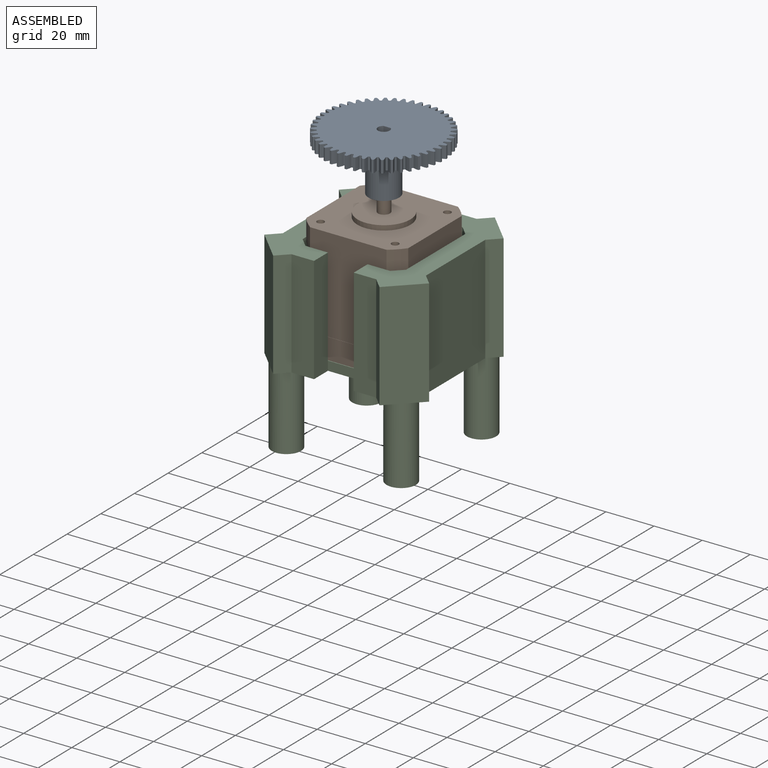
[diagram: assembled view]
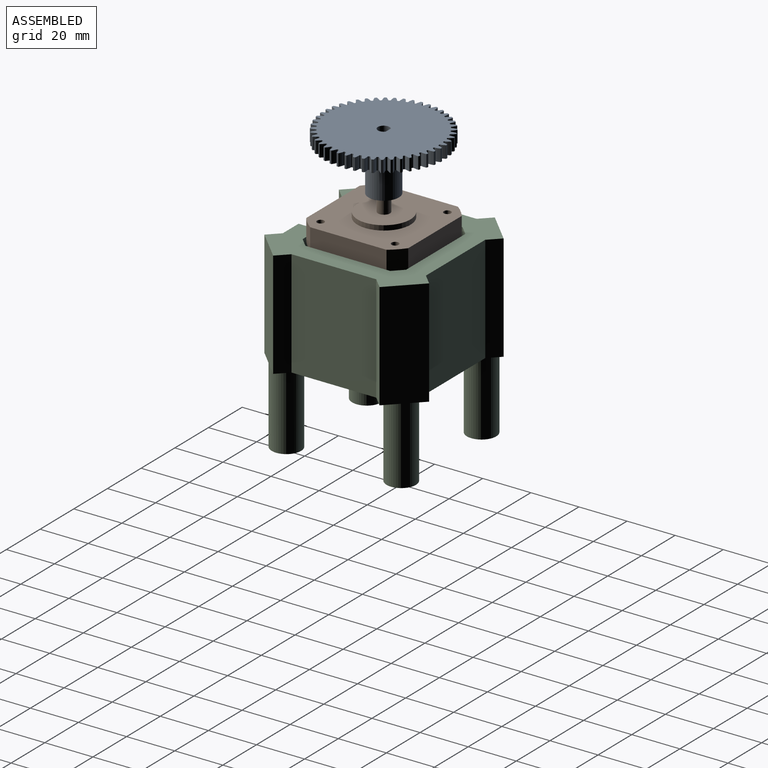
[diagram: assembled view, second angle]
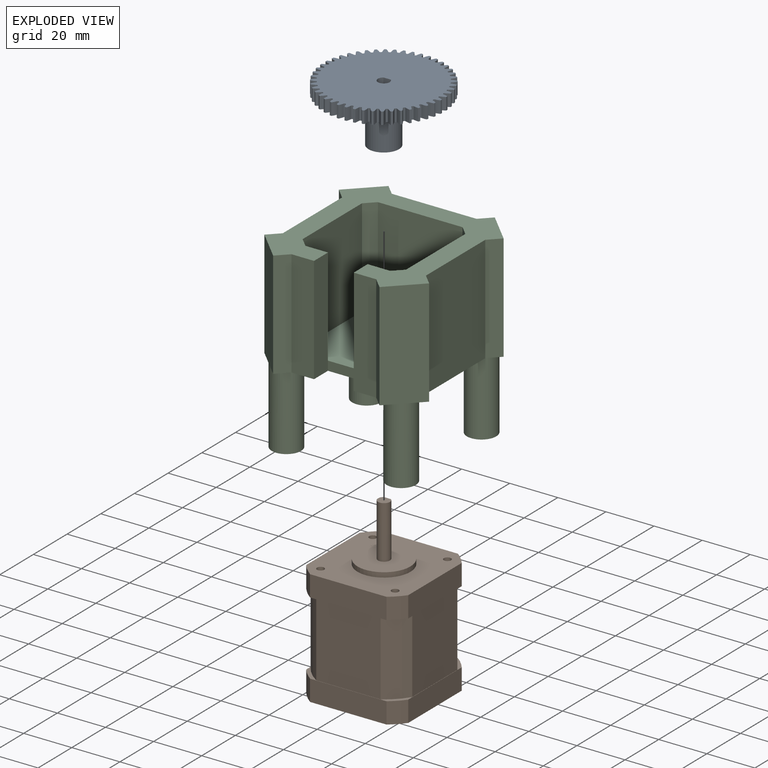
[diagram: exploded view]
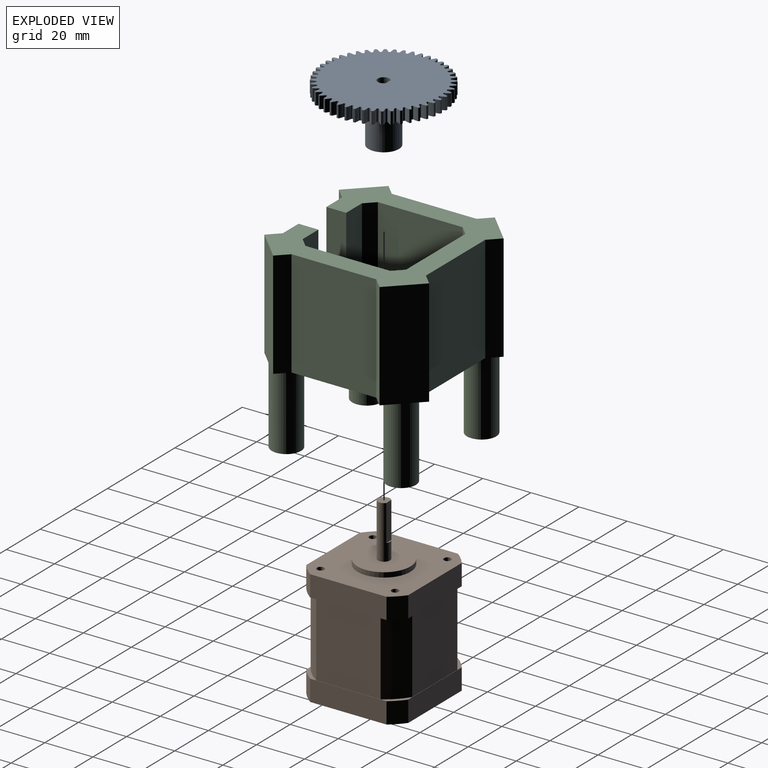
[diagram: exploded view, second angle]
ASSEMBLY  parts=3 mates=2
PART A: 294 faces, bbox 50.2x24.1x50.2 mm
  f0: cylinder r=25.14mm len=5.08mm, axis (0,1,0), area 3.9mm2, adj f47,f49,f280,f287
  f1: cylinder r=25.14mm len=5.08mm, axis (0,1,0), area 3.9mm2, adj f47,f49,f265,f282
  f2: cylinder r=25.14mm len=5.08mm, axis (0,1,0), area 3.9mm2, adj f47,f49,f277,f285
  f3: cylinder r=25.14mm len=5.08mm, axis (0,1,0), area 3.9mm2, adj f47,f49,f272,f275
  f4: cylinder r=25.14mm len=5.08mm, axis (0,1,0), area 3.9mm2, adj f47,f49,f260,f267
  f5: cylinder r=25.14mm len=5.08mm, axis (0,1,0), area 3.9mm2, adj f47,f49,f255,f262
  f6: cylinder r=25.14mm len=5.08mm, axis (0,1,0), area 3.9mm2, adj f47,f49,f250,f257
  f7: cylinder r=25.14mm len=5.08mm, axis (0,1,0), area 3.9mm2, adj f47,f49,f245,f252
  f8: cylinder r=25.14mm len=5.08mm, axis (0,1,0), area 3.9mm2, adj f47,f49,f240,f247
  f9: cylinder r=25.14mm len=5.08mm, axis (0,1,0), area 3.9mm2, adj f47,f49,f235,f242
  f10: cylinder r=25.14mm len=5.08mm, axis (0,1,0), area 3.9mm2, adj f47,f49,f230,f237
  f11: cylinder r=25.14mm len=5.08mm, axis (0,1,0), area 3.9mm2, adj f47,f49,f210,f232
  f12: cylinder r=25.14mm len=5.08mm, axis (0,1,0), area 3.9mm2, adj f47,f49,f220,f227
  f13: cylinder r=25.14mm len=5.08mm, axis (0,1,0), area 3.9mm2, adj f47,f49,f205,f222
  f14: cylinder r=25.14mm len=5.08mm, axis (0,1,0), area 3.9mm2, adj f47,f49,f217,f225
  f15: cylinder r=25.14mm len=5.08mm, axis (0,1,0), area 3.9mm2, adj f47,f49,f212,f215
  f16: cylinder r=25.14mm len=5.08mm, axis (0,1,0), area 3.9mm2, adj f47,f49,f200,f207
  f17: cylinder r=25.14mm len=5.08mm, axis (0,1,0), area 3.9mm2, adj f47,f49,f195,f202
  f18: cylinder r=25.14mm len=5.08mm, axis (0,1,0), area 3.9mm2, adj f47,f49,f190,f197
  f19: cylinder r=25.14mm len=5.08mm, axis (0,1,0), area 3.9mm2, adj f47,f49,f185,f192
  f20: cylinder r=25.14mm len=5.08mm, axis (0,1,0), area 3.9mm2, adj f47,f49,f180,f187
  f21: cylinder r=25.14mm len=5.08mm, axis (0,1,0), area 3.9mm2, adj f47,f49,f175,f182
  f22: cylinder r=25.14mm len=5.08mm, axis (0,1,0), area 3.9mm2, adj f47,f49,f170,f177
  f23: cylinder r=25.14mm len=5.08mm, axis (0,1,0), area 3.9mm2, adj f47,f49,f150,f172
  f24: cylinder r=25.14mm len=5.08mm, axis (0,1,0), area 3.9mm2, adj f47,f49,f160,f167
  f25: cylinder r=25.14mm len=5.08mm, axis (0,1,0), area 3.9mm2, adj f47,f49,f145,f162
  f26: cylinder r=25.14mm len=5.08mm, axis (0,1,0), area 3.9mm2, adj f47,f49,f157,f165
  f27: cylinder r=25.14mm len=5.08mm, axis (0,1,0), area 3.9mm2, adj f47,f49,f152,f155
  f28: cylinder r=25.14mm len=5.08mm, axis (0,1,0), area 3.9mm2, adj f47,f49,f140,f147
  f29: cylinder r=25.14mm len=5.08mm, axis (0,1,0), area 3.9mm2, adj f47,f49,f135,f142
  f30: cylinder r=25.14mm len=5.08mm, axis (0,1,0), area 3.9mm2, adj f47,f49,f130,f137
  f31: cylinder r=25.14mm len=5.08mm, axis (0,1,0), area 3.9mm2, adj f47,f49,f50,f132
  f32: cylinder r=25.14mm len=5.08mm, axis (0,1,0), area 3.9mm2, adj f47,f49,f127,f270
  f33: cylinder r=25.14mm len=5.08mm, axis (0,1,0), area 3.9mm2, adj f47,f49,f122,f125
  f34: cylinder r=25.14mm len=5.08mm, axis (0,1,0), area 3.9mm2, adj f47,f49,f117,f120
  f35: cylinder r=25.14mm len=5.08mm, axis (0,1,0), area 3.9mm2, adj f47,f49,f112,f115
  f36: cylinder r=25.14mm len=5.08mm, axis (0,1,0), area 3.9mm2, adj f47,f49,f107,f110
  f37: cylinder r=25.14mm len=5.08mm, axis (0,1,0), area 3.9mm2, adj f47,f49,f102,f105
  f38: cylinder r=25.14mm len=5.08mm, axis (0,1,0), area 3.9mm2, adj f47,f49,f97,f100
  f39: cylinder r=25.14mm len=5.08mm, axis (0,1,0), area 3.9mm2, adj f47,f49,f92,f95
  f40: cylinder r=25.14mm len=5.08mm, axis (0,1,0), area 3.9mm2, adj f47,f49,f80,f87
  f41: cylinder r=25.14mm len=5.08mm, axis (0,1,0), area 3.9mm2, adj f47,f49,f70,f82
  f42: cylinder r=25.14mm len=5.08mm, axis (0,1,0), area 3.9mm2, adj f47,f49,f77,f90
  f43: cylinder r=25.14mm len=5.08mm, axis (0,1,0), area 3.9mm2, adj f47,f49,f72,f75
  f44: cylinder r=25.14mm len=5.08mm, axis (0,1,0), area 3.9mm2, adj f47,f49,f67,f85
  f45: cylinder r=25.14mm len=5.08mm, axis (0,1,0), area 3.9mm2, adj f47,f49,f62,f65
  f46: cylinder r=25.14mm len=5.08mm, axis (0,1,0), area 3.9mm2, adj f47,f49,f57,f60
  f47: plane 50.21x50.21mm, normal (0,-1,0), area 1800.8mm2, adj f0,f1,f2,f3,f4,f5,f6,f7
  f48: cylinder r=25.14mm len=5.08mm, axis (0,1,0), area 3.9mm2, adj f47,f49,f52,f55
  f49: plane 50.21x50.21mm, normal (0,1,0), area 1691.7mm2, adj f0,f1,f2,f3,f4,f5,f6,f7
  f50: extruded ~5.08x1.96mm, area 10.7mm2, adj f31,f47,f49,f53
  f51: cylinder r=22.87mm len=5.08mm, axis (0,1,0), area 1.4mm2, adj f47,f49,f53,f54
  f52: extruded ~5.08x1.96mm, area 10.7mm2, adj f47,f48,f49,f54
  f53: cylinder r=0.35mm len=5.08mm, axis (0,1,0), area 2.4mm2, adj f47,f49,f50,f51
  f54: cylinder r=0.35mm len=5.08mm, axis (0,1,0), area 2.4mm2, adj f47,f49,f51,f52
  f55: extruded ~5.08x2.04mm, area 10.7mm2, adj f47,f48,f49,f58
  f56: cylinder r=22.87mm len=5.08mm, axis (0,1,0), area 1.4mm2, adj f47,f49,f58,f59
  f57: extruded ~5.08x1.84mm, area 10.7mm2, adj f46,f47,f49,f59
  f58: cylinder r=0.35mm len=5.08mm, axis (0,1,0), area 2.4mm2, adj f47,f49,f55,f56
  f59: cylinder r=0.35mm len=5.08mm, axis (0,1,0), area 2.4mm2, adj f47,f49,f56,f57
  f60: extruded ~5.08x2.09mm, area 10.7mm2, adj f46,f47,f49,f63
  f61: cylinder r=22.87mm len=5.08mm, axis (0,1,0), area 1.4mm2, adj f47,f49,f63,f64
  f62: extruded ~5.08x1.69mm, area 10.7mm2, adj f45,f47,f49,f64
  f63: cylinder r=0.35mm len=5.08mm, axis (0,1,0), area 2.4mm2, adj f47,f49,f60,f61
  f64: cylinder r=0.35mm len=5.08mm, axis (0,1,0), area 2.4mm2, adj f47,f49,f61,f62
  f65: extruded ~5.08x2.11mm, area 10.7mm2, adj f45,f47,f49,f68
  f66: cylinder r=22.87mm len=5.08mm, axis (0,1,0), area 1.4mm2, adj f47,f49,f68,f69
  f67: extruded ~5.08x1.51mm, area 10.7mm2, adj f44,f47,f49,f69
  f68: cylinder r=0.35mm len=5.08mm, axis (0,1,0), area 2.4mm2, adj f47,f49,f65,f66
  f69: cylinder r=0.35mm len=5.08mm, axis (0,1,0), area 2.4mm2, adj f47,f49,f66,f67
  f70: extruded ~5.08x1.94mm, area 10.7mm2, adj f41,f47,f49,f73
  f71: cylinder r=22.87mm len=5.08mm, axis (0,1,0), area 1.4mm2, adj f47,f49,f73,f74
  f72: extruded ~5.08x1.94mm, area 10.7mm2, adj f43,f47,f49,f74
  f73: cylinder r=0.35mm len=5.08mm, axis (0,1,0), area 2.4mm2, adj f47,f49,f70,f71
  f74: cylinder r=0.35mm len=5.08mm, axis (0,1,0), area 2.4mm2, adj f47,f49,f71,f72
  f75: extruded ~5.08x1.81mm, area 10.7mm2, adj f43,f47,f49,f78
  f76: cylinder r=22.87mm len=5.08mm, axis (0,1,0), area 1.4mm2, adj f47,f49,f78,f79
  f77: extruded ~5.08x2.03mm, area 10.7mm2, adj f42,f47,f49,f79
  f78: cylinder r=0.35mm len=5.08mm, axis (0,1,0), area 2.4mm2, adj f47,f49,f75,f76
  f79: cylinder r=0.35mm len=5.08mm, axis (0,1,0), area 2.4mm2, adj f47,f49,f76,f77
  f80: extruded ~5.08x2.03mm, area 10.7mm2, adj f40,f47,f49,f83
  f81: cylinder r=22.87mm len=5.08mm, axis (0,1,0), area 1.4mm2, adj f47,f49,f83,f84
  f82: extruded ~5.08x1.81mm, area 10.7mm2, adj f41,f47,f49,f84
  f83: cylinder r=0.35mm len=5.08mm, axis (0,1,0), area 2.4mm2, adj f47,f49,f80,f81
  f84: cylinder r=0.35mm len=5.08mm, axis (0,1,0), area 2.4mm2, adj f47,f49,f81,f82
  f85: extruded ~5.08x2.09mm, area 10.7mm2, adj f44,f47,f49,f88
  f86: cylinder r=22.87mm len=5.08mm, axis (0,1,0), area 1.4mm2, adj f47,f49,f88,f89
  f87: extruded ~5.08x1.65mm, area 10.7mm2, adj f40,f47,f49,f89
  f88: cylinder r=0.35mm len=5.08mm, axis (0,1,0), area 2.4mm2, adj f47,f49,f85,f86
  f89: cylinder r=0.35mm len=5.08mm, axis (0,1,0), area 2.4mm2, adj f47,f49,f86,f87
  f90: extruded ~5.08x1.65mm, area 10.7mm2, adj f42,f47,f49,f93
  f91: cylinder r=22.87mm len=5.08mm, axis (0,1,0), area 1.4mm2, adj f47,f49,f93,f94
  f92: extruded ~5.08x2.09mm, area 10.7mm2, adj f39,f47,f49,f94
  f93: cylinder r=0.35mm len=5.08mm, axis (0,1,0), area 2.4mm2, adj f47,f49,f90,f91
  f94: cylinder r=0.35mm len=5.08mm, axis (0,1,0), area 2.4mm2, adj f47,f49,f91,f92
  f95: extruded ~5.08x1.51mm, area 10.7mm2, adj f39,f47,f49,f98
  f96: cylinder r=22.87mm len=5.08mm, axis (0,1,0), area 1.4mm2, adj f47,f49,f98,f99
  f97: extruded ~5.08x2.11mm, area 10.7mm2, adj f38,f47,f49,f99
  f98: cylinder r=0.35mm len=5.08mm, axis (0,1,0), area 2.4mm2, adj f47,f49,f95,f96
  f99: cylinder r=0.35mm len=5.08mm, axis (0,1,0), area 2.4mm2, adj f47,f49,f96,f97
  f100: extruded ~5.08x1.69mm, area 10.7mm2, adj f38,f47,f49,f103
  f101: cylinder r=22.87mm len=5.08mm, axis (0,1,0), area 1.4mm2, adj f47,f49,f103,f104
  f102: extruded ~5.08x2.09mm, area 10.7mm2, adj f37,f47,f49,f104
  f103: cylinder r=0.35mm len=5.08mm, axis (0,1,0), area 2.4mm2, adj f47,f49,f100,f101
  f104: cylinder r=0.35mm len=5.08mm, axis (0,1,0), area 2.4mm2, adj f47,f49,f101,f102
  f105: extruded ~5.08x1.84mm, area 10.7mm2, adj f37,f47,f49,f108
  f106: cylinder r=22.87mm len=5.08mm, axis (0,1,0), area 1.4mm2, adj f47,f49,f108,f109
  f107: extruded ~5.08x2.04mm, area 10.7mm2, adj f36,f47,f49,f109
  f108: cylinder r=0.35mm len=5.08mm, axis (0,1,0), area 2.4mm2, adj f47,f49,f105,f106
  f109: cylinder r=0.35mm len=5.08mm, axis (0,1,0), area 2.4mm2, adj f47,f49,f106,f107
  f110: extruded ~5.08x1.96mm, area 10.7mm2, adj f36,f47,f49,f113
  f111: cylinder r=22.87mm len=5.08mm, axis (0,1,0), area 1.4mm2, adj f47,f49,f113,f114
  f112: extruded ~5.08x1.96mm, area 10.7mm2, adj f35,f47,f49,f114
  f113: cylinder r=0.35mm len=5.08mm, axis (0,1,0), area 2.4mm2, adj f47,f49,f110,f111
  f114: cylinder r=0.35mm len=5.08mm, axis (0,1,0), area 2.4mm2, adj f47,f49,f111,f112
  f115: extruded ~5.08x2.04mm, area 10.7mm2, adj f35,f47,f49,f118
  f116: cylinder r=22.87mm len=5.08mm, axis (0,1,0), area 1.4mm2, adj f47,f49,f118,f119
  f117: extruded ~5.08x1.84mm, area 10.7mm2, adj f34,f47,f49,f119
  f118: cylinder r=0.35mm len=5.08mm, axis (0,1,0), area 2.4mm2, adj f47,f49,f115,f116
  f119: cylinder r=0.35mm len=5.08mm, axis (0,1,0), area 2.4mm2, adj f47,f49,f116,f117
  f120: extruded ~5.08x2.09mm, area 10.7mm2, adj f34,f47,f49,f123
  f121: cylinder r=22.87mm len=5.08mm, axis (0,1,0), area 1.4mm2, adj f47,f49,f123,f124
  f122: extruded ~5.08x1.69mm, area 10.7mm2, adj f33,f47,f49,f124
  f123: cylinder r=0.35mm len=5.08mm, axis (0,1,0), area 2.4mm2, adj f47,f49,f120,f121
  f124: cylinder r=0.35mm len=5.08mm, axis (0,1,0), area 2.4mm2, adj f47,f49,f121,f122
  f125: extruded ~5.08x2.11mm, area 10.7mm2, adj f33,f47,f49,f128
  f126: cylinder r=22.87mm len=5.08mm, axis (0,1,0), area 1.4mm2, adj f47,f49,f128,f129
  f127: extruded ~5.08x1.51mm, area 10.7mm2, adj f32,f47,f49,f129
  f128: cylinder r=0.35mm len=5.08mm, axis (0,1,0), area 2.4mm2, adj f47,f49,f125,f126
  f129: cylinder r=0.35mm len=5.08mm, axis (0,1,0), area 2.4mm2, adj f47,f49,f126,f127
  f130: extruded ~5.08x1.84mm, area 10.7mm2, adj f30,f47,f49,f133
  f131: cylinder r=22.87mm len=5.08mm, axis (0,1,0), area 1.4mm2, adj f47,f49,f133,f134
  f132: extruded ~5.08x2.04mm, area 10.7mm2, adj f31,f47,f49,f134
  f133: cylinder r=0.35mm len=5.08mm, axis (0,1,0), area 2.4mm2, adj f47,f49,f130,f131
  f134: cylinder r=0.35mm len=5.08mm, axis (0,1,0), area 2.4mm2, adj f47,f49,f131,f132
  f135: extruded ~5.08x1.69mm, area 10.7mm2, adj f29,f47,f49,f138
  f136: cylinder r=22.87mm len=5.08mm, axis (0,1,0), area 1.4mm2, adj f47,f49,f138,f139
  f137: extruded ~5.08x2.09mm, area 10.7mm2, adj f30,f47,f49,f139
  f138: cylinder r=0.35mm len=5.08mm, axis (0,1,0), area 2.4mm2, adj f47,f49,f135,f136
  f139: cylinder r=0.35mm len=5.08mm, axis (0,1,0), area 2.4mm2, adj f47,f49,f136,f137
  f140: extruded ~5.08x1.51mm, area 10.7mm2, adj f28,f47,f49,f143
  f141: cylinder r=22.87mm len=5.08mm, axis (0,1,0), area 1.4mm2, adj f47,f49,f143,f144
  f142: extruded ~5.08x2.11mm, area 10.7mm2, adj f29,f47,f49,f144
  f143: cylinder r=0.35mm len=5.08mm, axis (0,1,0), area 2.4mm2, adj f47,f49,f140,f141
  f144: cylinder r=0.35mm len=5.08mm, axis (0,1,0), area 2.4mm2, adj f47,f49,f141,f142
  f145: extruded ~5.08x1.65mm, area 10.7mm2, adj f25,f47,f49,f148
  f146: cylinder r=22.87mm len=5.08mm, axis (0,1,0), area 1.4mm2, adj f47,f49,f148,f149
  f147: extruded ~5.08x2.09mm, area 10.7mm2, adj f28,f47,f49,f149
  f148: cylinder r=0.35mm len=5.08mm, axis (0,1,0), area 2.4mm2, adj f47,f49,f145,f146
  f149: cylinder r=0.35mm len=5.08mm, axis (0,1,0), area 2.4mm2, adj f47,f49,f146,f147
  f150: extruded ~5.08x2.09mm, area 10.7mm2, adj f23,f47,f49,f153
  f151: cylinder r=22.87mm len=5.08mm, axis (0,1,0), area 1.4mm2, adj f47,f49,f153,f154
  f152: extruded ~5.08x1.65mm, area 10.7mm2, adj f27,f47,f49,f154
  f153: cylinder r=0.35mm len=5.08mm, axis (0,1,0), area 2.4mm2, adj f47,f49,f150,f151
  f154: cylinder r=0.35mm len=5.08mm, axis (0,1,0), area 2.4mm2, adj f47,f49,f151,f152
  f155: extruded ~5.08x2.03mm, area 10.7mm2, adj f27,f47,f49,f158
  f156: cylinder r=22.87mm len=5.08mm, axis (0,1,0), area 1.4mm2, adj f47,f49,f158,f159
  f157: extruded ~5.08x1.81mm, area 10.7mm2, adj f26,f47,f49,f159
  f158: cylinder r=0.35mm len=5.08mm, axis (0,1,0), area 2.4mm2, adj f47,f49,f155,f156
  f159: cylinder r=0.35mm len=5.08mm, axis (0,1,0), area 2.4mm2, adj f47,f49,f156,f157
  f160: extruded ~5.08x1.81mm, area 10.7mm2, adj f24,f47,f49,f163
  f161: cylinder r=22.87mm len=5.08mm, axis (0,1,0), area 1.4mm2, adj f47,f49,f163,f164
  f162: extruded ~5.08x2.03mm, area 10.7mm2, adj f25,f47,f49,f164
  f163: cylinder r=0.35mm len=5.08mm, axis (0,1,0), area 2.4mm2, adj f47,f49,f160,f161
  f164: cylinder r=0.35mm len=5.08mm, axis (0,1,0), area 2.4mm2, adj f47,f49,f161,f162
  f165: extruded ~5.08x1.94mm, area 10.7mm2, adj f26,f47,f49,f168
  f166: cylinder r=22.87mm len=5.08mm, axis (0,1,0), area 1.4mm2, adj f47,f49,f168,f169
  f167: extruded ~5.08x1.94mm, area 10.7mm2, adj f24,f47,f49,f169
  f168: cylinder r=0.35mm len=5.08mm, axis (0,1,0), area 2.4mm2, adj f47,f49,f165,f166
  f169: cylinder r=0.35mm len=5.08mm, axis (0,1,0), area 2.4mm2, adj f47,f49,f166,f167
  f170: extruded ~5.08x2.11mm, area 10.7mm2, adj f22,f47,f49,f173
  f171: cylinder r=22.87mm len=5.08mm, axis (0,1,0), area 1.4mm2, adj f47,f49,f173,f174
  f172: extruded ~5.08x1.51mm, area 10.7mm2, adj f23,f47,f49,f174
  f173: cylinder r=0.35mm len=5.08mm, axis (0,1,0), area 2.4mm2, adj f47,f49,f170,f171
  f174: cylinder r=0.35mm len=5.08mm, axis (0,1,0), area 2.4mm2, adj f47,f49,f171,f172
  f175: extruded ~5.08x2.09mm, area 10.7mm2, adj f21,f47,f49,f178
  f176: cylinder r=22.87mm len=5.08mm, axis (0,1,0), area 1.4mm2, adj f47,f49,f178,f179
  f177: extruded ~5.08x1.69mm, area 10.7mm2, adj f22,f47,f49,f179
  f178: cylinder r=0.35mm len=5.08mm, axis (0,1,0), area 2.4mm2, adj f47,f49,f175,f176
  f179: cylinder r=0.35mm len=5.08mm, axis (0,1,0), area 2.4mm2, adj f47,f49,f176,f177
  f180: extruded ~5.08x2.04mm, area 10.7mm2, adj f20,f47,f49,f183
  f181: cylinder r=22.87mm len=5.08mm, axis (0,1,0), area 1.4mm2, adj f47,f49,f183,f184
  f182: extruded ~5.08x1.84mm, area 10.7mm2, adj f21,f47,f49,f184
  f183: cylinder r=0.35mm len=5.08mm, axis (0,1,0), area 2.4mm2, adj f47,f49,f180,f181
  f184: cylinder r=0.35mm len=5.08mm, axis (0,1,0), area 2.4mm2, adj f47,f49,f181,f182
  f185: extruded ~5.08x1.96mm, area 10.7mm2, adj f19,f47,f49,f188
  f186: cylinder r=22.87mm len=5.08mm, axis (0,1,0), area 1.4mm2, adj f47,f49,f188,f189
  f187: extruded ~5.08x1.96mm, area 10.7mm2, adj f20,f47,f49,f189
  f188: cylinder r=0.35mm len=5.08mm, axis (0,1,0), area 2.4mm2, adj f47,f49,f185,f186
  f189: cylinder r=0.35mm len=5.08mm, axis (0,1,0), area 2.4mm2, adj f47,f49,f186,f187
  f190: extruded ~5.08x1.84mm, area 10.7mm2, adj f18,f47,f49,f193
  f191: cylinder r=22.87mm len=5.08mm, axis (0,1,0), area 1.4mm2, adj f47,f49,f193,f194
  f192: extruded ~5.08x2.04mm, area 10.7mm2, adj f19,f47,f49,f194
  f193: cylinder r=0.35mm len=5.08mm, axis (0,1,0), area 2.4mm2, adj f47,f49,f190,f191
  f194: cylinder r=0.35mm len=5.08mm, axis (0,1,0), area 2.4mm2, adj f47,f49,f191,f192
  f195: extruded ~5.08x1.69mm, area 10.7mm2, adj f17,f47,f49,f198
  f196: cylinder r=22.87mm len=5.08mm, axis (0,1,0), area 1.4mm2, adj f47,f49,f198,f199
  f197: extruded ~5.08x2.09mm, area 10.7mm2, adj f18,f47,f49,f199
  f198: cylinder r=0.35mm len=5.08mm, axis (0,1,0), area 2.4mm2, adj f47,f49,f195,f196
  f199: cylinder r=0.35mm len=5.08mm, axis (0,1,0), area 2.4mm2, adj f47,f49,f196,f197
  f200: extruded ~5.08x1.51mm, area 10.7mm2, adj f16,f47,f49,f203
  f201: cylinder r=22.87mm len=5.08mm, axis (0,1,0), area 1.4mm2, adj f47,f49,f203,f204
  f202: extruded ~5.08x2.11mm, area 10.7mm2, adj f17,f47,f49,f204
  f203: cylinder r=0.35mm len=5.08mm, axis (0,1,0), area 2.4mm2, adj f47,f49,f200,f201
  f204: cylinder r=0.35mm len=5.08mm, axis (0,1,0), area 2.4mm2, adj f47,f49,f201,f202
  f205: extruded ~5.08x1.65mm, area 10.7mm2, adj f13,f47,f49,f208
  f206: cylinder r=22.87mm len=5.08mm, axis (0,1,0), area 1.4mm2, adj f47,f49,f208,f209
  f207: extruded ~5.08x2.09mm, area 10.7mm2, adj f16,f47,f49,f209
  f208: cylinder r=0.35mm len=5.08mm, axis (0,1,0), area 2.4mm2, adj f47,f49,f205,f206
  f209: cylinder r=0.35mm len=5.08mm, axis (0,1,0), area 2.4mm2, adj f47,f49,f206,f207
  f210: extruded ~5.08x2.09mm, area 10.7mm2, adj f11,f47,f49,f213
  f211: cylinder r=22.87mm len=5.08mm, axis (0,1,0), area 1.4mm2, adj f47,f49,f213,f214
  f212: extruded ~5.08x1.65mm, area 10.7mm2, adj f15,f47,f49,f214
  f213: cylinder r=0.35mm len=5.08mm, axis (0,1,0), area 2.4mm2, adj f47,f49,f210,f211
  f214: cylinder r=0.35mm len=5.08mm, axis (0,1,0), area 2.4mm2, adj f47,f49,f211,f212
  f215: extruded ~5.08x2.03mm, area 10.7mm2, adj f15,f47,f49,f218
  f216: cylinder r=22.87mm len=5.08mm, axis (0,1,0), area 1.4mm2, adj f47,f49,f218,f219
  f217: extruded ~5.08x1.81mm, area 10.7mm2, adj f14,f47,f49,f219
  f218: cylinder r=0.35mm len=5.08mm, axis (0,1,0), area 2.4mm2, adj f47,f49,f215,f216
  f219: cylinder r=0.35mm len=5.08mm, axis (0,1,0), area 2.4mm2, adj f47,f49,f216,f217
  f220: extruded ~5.08x1.81mm, area 10.7mm2, adj f12,f47,f49,f223
  f221: cylinder r=22.87mm len=5.08mm, axis (0,1,0), area 1.4mm2, adj f47,f49,f223,f224
  f222: extruded ~5.08x2.03mm, area 10.7mm2, adj f13,f47,f49,f224
  f223: cylinder r=0.35mm len=5.08mm, axis (0,1,0), area 2.4mm2, adj f47,f49,f220,f221
  f224: cylinder r=0.35mm len=5.08mm, axis (0,1,0), area 2.4mm2, adj f47,f49,f221,f222
  f225: extruded ~5.08x1.94mm, area 10.7mm2, adj f14,f47,f49,f228
  f226: cylinder r=22.87mm len=5.08mm, axis (0,1,0), area 1.4mm2, adj f47,f49,f228,f229
  f227: extruded ~5.08x1.94mm, area 10.7mm2, adj f12,f47,f49,f229
  f228: cylinder r=0.35mm len=5.08mm, axis (0,1,0), area 2.4mm2, adj f47,f49,f225,f226
  f229: cylinder r=0.35mm len=5.08mm, axis (0,1,0), area 2.4mm2, adj f47,f49,f226,f227
  f230: extruded ~5.08x2.11mm, area 10.7mm2, adj f10,f47,f49,f233
  f231: cylinder r=22.87mm len=5.08mm, axis (0,1,0), area 1.4mm2, adj f47,f49,f233,f234
  f232: extruded ~5.08x1.51mm, area 10.7mm2, adj f11,f47,f49,f234
  f233: cylinder r=0.35mm len=5.08mm, axis (0,1,0), area 2.4mm2, adj f47,f49,f230,f231
  f234: cylinder r=0.35mm len=5.08mm, axis (0,1,0), area 2.4mm2, adj f47,f49,f231,f232
  f235: extruded ~5.08x2.09mm, area 10.7mm2, adj f9,f47,f49,f238
  f236: cylinder r=22.87mm len=5.08mm, axis (0,1,0), area 1.4mm2, adj f47,f49,f238,f239
  f237: extruded ~5.08x1.69mm, area 10.7mm2, adj f10,f47,f49,f239
  f238: cylinder r=0.35mm len=5.08mm, axis (0,1,0), area 2.4mm2, adj f47,f49,f235,f236
  f239: cylinder r=0.35mm len=5.08mm, axis (0,1,0), area 2.4mm2, adj f47,f49,f236,f237
  f240: extruded ~5.08x2.04mm, area 10.7mm2, adj f8,f47,f49,f243
  f241: cylinder r=22.87mm len=5.08mm, axis (0,1,0), area 1.4mm2, adj f47,f49,f243,f244
  f242: extruded ~5.08x1.84mm, area 10.7mm2, adj f9,f47,f49,f244
  f243: cylinder r=0.35mm len=5.08mm, axis (0,1,0), area 2.4mm2, adj f47,f49,f240,f241
  f244: cylinder r=0.35mm len=5.08mm, axis (0,1,0), area 2.4mm2, adj f47,f49,f241,f242
  f245: extruded ~5.08x1.96mm, area 10.7mm2, adj f7,f47,f49,f248
  f246: cylinder r=22.87mm len=5.08mm, axis (0,1,0), area 1.4mm2, adj f47,f49,f248,f249
  f247: extruded ~5.08x1.96mm, area 10.7mm2, adj f8,f47,f49,f249
  f248: cylinder r=0.35mm len=5.08mm, axis (0,1,0), area 2.4mm2, adj f47,f49,f245,f246
  f249: cylinder r=0.35mm len=5.08mm, axis (0,1,0), area 2.4mm2, adj f47,f49,f246,f247
  f250: extruded ~5.08x1.84mm, area 10.7mm2, adj f6,f47,f49,f253
  f251: cylinder r=22.87mm len=5.08mm, axis (0,1,0), area 1.4mm2, adj f47,f49,f253,f254
  f252: extruded ~5.08x2.04mm, area 10.7mm2, adj f7,f47,f49,f254
  f253: cylinder r=0.35mm len=5.08mm, axis (0,1,0), area 2.4mm2, adj f47,f49,f250,f251
  f254: cylinder r=0.35mm len=5.08mm, axis (0,1,0), area 2.4mm2, adj f47,f49,f251,f252
  f255: extruded ~5.08x1.69mm, area 10.7mm2, adj f5,f47,f49,f258
  f256: cylinder r=22.87mm len=5.08mm, axis (0,1,0), area 1.4mm2, adj f47,f49,f258,f259
  f257: extruded ~5.08x2.09mm, area 10.7mm2, adj f6,f47,f49,f259
  f258: cylinder r=0.35mm len=5.08mm, axis (0,1,0), area 2.4mm2, adj f47,f49,f255,f256
  f259: cylinder r=0.35mm len=5.08mm, axis (0,1,0), area 2.4mm2, adj f47,f49,f256,f257
  f260: extruded ~5.08x1.51mm, area 10.7mm2, adj f4,f47,f49,f263
  f261: cylinder r=22.87mm len=5.08mm, axis (0,1,0), area 1.4mm2, adj f47,f49,f263,f264
  f262: extruded ~5.08x2.11mm, area 10.7mm2, adj f5,f47,f49,f264
  f263: cylinder r=0.35mm len=5.08mm, axis (0,1,0), area 2.4mm2, adj f47,f49,f260,f261
  f264: cylinder r=0.35mm len=5.08mm, axis (0,1,0), area 2.4mm2, adj f47,f49,f261,f262
  f265: extruded ~5.08x1.65mm, area 10.7mm2, adj f1,f47,f49,f268
  f266: cylinder r=22.87mm len=5.08mm, axis (0,1,0), area 1.4mm2, adj f47,f49,f268,f269
  f267: extruded ~5.08x2.09mm, area 10.7mm2, adj f4,f47,f49,f269
  f268: cylinder r=0.35mm len=5.08mm, axis (0,1,0), area 2.4mm2, adj f47,f49,f265,f266
  f269: cylinder r=0.35mm len=5.08mm, axis (0,1,0), area 2.4mm2, adj f47,f49,f266,f267
  f270: extruded ~5.08x2.09mm, area 10.7mm2, adj f32,f47,f49,f273
  f271: cylinder r=22.87mm len=5.08mm, axis (0,1,0), area 1.4mm2, adj f47,f49,f273,f274
  f272: extruded ~5.08x1.65mm, area 10.7mm2, adj f3,f47,f49,f274
  f273: cylinder r=0.35mm len=5.08mm, axis (0,1,0), area 2.4mm2, adj f47,f49,f270,f271
  f274: cylinder r=0.35mm len=5.08mm, axis (0,1,0), area 2.4mm2, adj f47,f49,f271,f272
  f275: extruded ~5.08x2.03mm, area 10.7mm2, adj f3,f47,f49,f278
  f276: cylinder r=22.87mm len=5.08mm, axis (0,1,0), area 1.4mm2, adj f47,f49,f278,f279
  f277: extruded ~5.08x1.81mm, area 10.7mm2, adj f2,f47,f49,f279
  f278: cylinder r=0.35mm len=5.08mm, axis (0,1,0), area 2.4mm2, adj f47,f49,f275,f276
  f279: cylinder r=0.35mm len=5.08mm, axis (0,1,0), area 2.4mm2, adj f47,f49,f276,f277
  f280: extruded ~5.08x1.81mm, area 10.7mm2, adj f0,f47,f49,f283
  f281: cylinder r=22.87mm len=5.08mm, axis (0,1,0), area 1.4mm2, adj f47,f49,f283,f284
  f282: extruded ~5.08x2.03mm, area 10.7mm2, adj f1,f47,f49,f284
  f283: cylinder r=0.35mm len=5.08mm, axis (0,1,0), area 2.4mm2, adj f47,f49,f280,f281
  f284: cylinder r=0.35mm len=5.08mm, axis (0,1,0), area 2.4mm2, adj f47,f49,f281,f282
  f285: extruded ~5.08x1.94mm, area 10.7mm2, adj f2,f47,f49,f288
  f286: cylinder r=22.87mm len=5.08mm, axis (0,1,0), area 1.4mm2, adj f47,f49,f288,f289
  f287: extruded ~5.08x1.94mm, area 10.7mm2, adj f0,f47,f49,f289
  f288: cylinder r=0.35mm len=5.08mm, axis (0,1,0), area 2.4mm2, adj f47,f49,f285,f286
  f289: cylinder r=0.35mm len=5.08mm, axis (0,1,0), area 2.4mm2, adj f47,f49,f286,f287
  f290: cylinder r=6.35mm len=19.05mm, axis (0,-1,0), area 760.1mm2, adj f49,f291
  f291: plane 12.7x12.7mm, normal (0,1,0), area 109.1mm2, adj f290,f292,f293
  f292: cylinder r=2.44mm len=24.13mm, axis (0,1,0), area 291.6mm2, adj f47,f291,f293
  f293: plane 24.13x3mm, normal (0,0,1), area 72.4mm2, adj f47,f291,f292
PART B: 50 faces, bbox 42.4x42.4x72 mm
  f0: cylinder r=2.5mm len=22mm, axis (0,0,-1), area 297.3mm2, adj f1,f2,f29,f30
  f1: plane 5x4.5mm, normal (0,0,1), area 18.6mm2, adj f0,f29
  f2: plane 22x22mm, normal (0,0,1), area 360.5mm2, adj f0,f3
  f3: cylinder r=11mm len=22mm, axis (0,0,-1), area 138.2mm2, adj f2,f8
  f4: plane 31.78x8.75mm, normal (1,0,0), area 278mm2, adj f8,f9,f10,f32
  f5: plane 31.78x8.75mm, normal (0,-1,0), area 278mm2, adj f8,f9,f11,f32
  f6: plane 31.78x8.75mm, normal (-1,0,0), area 278mm2, adj f8,f11,f12,f32
  f7: plane 31.78x8.75mm, normal (0,1,0), area 278mm2, adj f8,f10,f12,f32
  f8: plane 42.42x42.42mm, normal (0,0,1), area 1339.6mm2, adj f3,f4,f5,f6,f7,f9,f10,f11
  f9: cylinder r=26.5mm len=8.75mm, axis (0,0,-1), area 66.1mm2, adj f4,f5,f8,f32
  f10: cylinder r=26.5mm len=8.75mm, axis (0,0,-1), area 66.1mm2, adj f4,f7,f8,f32
  f11: cylinder r=26.5mm len=8.75mm, axis (0,0,-1), area 66.1mm2, adj f5,f6,f8,f32
  f12: cylinder r=26.5mm len=8.75mm, axis (0,0,-1), area 66.1mm2, adj f6,f7,f8,f32
  f13: cone r=1.25mm half-angle=59deg, axis (0,0,1), area 5.7mm2, adj f14
  f14: cylinder r=1.25mm len=2.5mm, axis (0,0,1), area 11.8mm2, adj f13,f15
  f15: plane 3x3mm, normal (0,0,1), area 2.2mm2, adj f14,f16
  f16: cylinder r=1.5mm len=6mm, axis (0,0,1), area 56.5mm2, adj f8,f15
  f17: cone r=1.25mm half-angle=59deg, axis (0,0,1), area 5.7mm2, adj f18
  f18: cylinder r=1.25mm len=2.5mm, axis (0,0,1), area 11.8mm2, adj f17,f19
  f19: plane 3x3mm, normal (0,0,1), area 2.2mm2, adj f18,f20
  f20: cylinder r=1.5mm len=6mm, axis (0,0,1), area 56.5mm2, adj f8,f19
  f21: cone r=1.25mm half-angle=59deg, axis (0,0,1), area 5.7mm2, adj f22
  f22: cylinder r=1.25mm len=2.5mm, axis (0,0,1), area 11.8mm2, adj f21,f23
  f23: plane 3x3mm, normal (0,0,1), area 2.2mm2, adj f22,f24
  f24: cylinder r=1.5mm len=6mm, axis (0,0,1), area 56.5mm2, adj f8,f23
  f25: cone r=1.25mm half-angle=59deg, axis (0,0,1), area 5.7mm2, adj f26
  f26: cylinder r=1.25mm len=2.5mm, axis (0,0,1), area 11.8mm2, adj f25,f27
  f27: plane 3x3mm, normal (0,0,1), area 2.2mm2, adj f26,f28
  f28: cylinder r=1.5mm len=6mm, axis (0,0,1), area 56.5mm2, adj f8,f27
  f29: plane 15x3mm, normal (0,1,0), area 45mm2, adj f0,f1,f30
  f30: plane 3x0.5mm, normal (0,0,1), area 1mm2, adj f0,f29
  f31: plane 42.42x42.42mm, normal (0,0,1), area 67.2mm2, adj f33,f34,f35,f36,f37,f38,f39,f40
  f32: plane 42.42x42.42mm, normal (0,0,-1), area 67.2mm2, adj f4,f5,f6,f7,f9,f10,f11,f12
  f33: cylinder r=25mm len=30.5mm, axis (0,0,1), area 335.5mm2, adj f31,f32,f34,f40
  f34: plane 30.5x26.79mm, normal (0,1,0), area 817.1mm2, adj f31,f32,f33,f35
  f35: cylinder r=25mm len=30.5mm, axis (0,0,1), area 335.5mm2, adj f31,f32,f34,f36
  f36: plane 30.5x26.79mm, normal (1,0,0), area 817.1mm2, adj f31,f32,f35,f37
  f37: cylinder r=25mm len=30.5mm, axis (0,0,1), area 335.5mm2, adj f31,f32,f36,f38
  f38: plane 30.5x26.79mm, normal (0,-1,0), area 817.1mm2, adj f31,f32,f37,f39
  f39: cylinder r=25mm len=30.5mm, axis (0,0,1), area 335.5mm2, adj f31,f32,f38,f40
  f40: plane 30.5x26.79mm, normal (-1,0,0), area 817.1mm2, adj f31,f32,f33,f39
  f41: plane 42.42x42.42mm, normal (0,0,-1), area 1748.1mm2, adj f42,f43,f44,f45,f46,f47,f48,f49
  f42: cylinder r=26.5mm len=8.75mm, axis (0,0,-1), area 66.1mm2, adj f31,f41,f48,f49
  f43: cylinder r=26.5mm len=8.75mm, axis (0,0,-1), area 66.1mm2, adj f31,f41,f47,f48
  f44: cylinder r=26.5mm len=8.75mm, axis (0,0,-1), area 66.1mm2, adj f31,f41,f46,f47
  f45: cylinder r=26.5mm len=8.75mm, axis (0,0,-1), area 66.1mm2, adj f31,f41,f46,f49
  f46: plane 31.78x8.75mm, normal (0,1,0), area 278mm2, adj f31,f41,f44,f45
  f47: plane 31.78x8.75mm, normal (-1,0,0), area 278mm2, adj f31,f41,f43,f44
  f48: plane 31.78x8.75mm, normal (0,-1,0), area 278mm2, adj f31,f41,f42,f43
  f49: plane 31.78x8.75mm, normal (1,0,0), area 278mm2, adj f31,f41,f42,f45
PART C: 61 faces, bbox 68.7x68.7x76.7 mm
  f0: plane 3.87x3.86mm, normal (0,0,-1), area 10.7mm2, adj f57,f58,f59,f60
  f1: plane 3.87x3.86mm, normal (0,0,-1), area 10.7mm2, adj f53,f54,f55,f56
  f2: plane 3.87x3.86mm, normal (0,0,-1), area 10.7mm2, adj f49,f50,f51,f52
  f3: plane 3.87x3.86mm, normal (0,0,-1), area 10.7mm2, adj f45,f46,f47,f48
  f4: plane 44.45x9.36mm, normal (0,-1,0), area 416.2mm2, adj f6,f11,f22,f35
  f5: plane 40.64x9.36mm, normal (0,1,0), area 380.2mm2, adj f6,f15,f20,f34
  f6: plane 68.5x68.5mm, normal (0,0,1), area 1728.6mm2, adj f4,f5,f7,f8,f9,f10,f12,f13
  f7: plane 44.45x35.22mm, normal (-1,0,0), area 1565.6mm2, adj f6,f11,f27,f31
  f8: plane 44.45x9.36mm, normal (0,-1,0), area 415.9mm2, adj f6,f11,f30,f34
  f9: plane 44.45x35.22mm, normal (1,0,0), area 1565.6mm2, adj f6,f11,f21,f25
  f10: plane 44.45x35.22mm, normal (0,1,0), area 1565.6mm2, adj f6,f11,f24,f28
  f11: plane 68.5x68.5mm, normal (0,0,-1), area 3080.4mm2, adj f4,f7,f8,f9,f10,f21,f22,f23
  f12: plane 40.64x35.22mm, normal (-1,0,0), area 1431.4mm2, adj f6,f13,f19,f20
  f13: plane 40.64x3.89mm, normal (-0.71,0.71,0), area 223.5mm2, adj f6,f12,f14,f20
  f14: plane 40.64x9.36mm, normal (0,1,0), area 380.5mm2, adj f6,f13,f20,f35
  f15: plane 40.64x3.89mm, normal (0.71,0.71,0), area 223.5mm2, adj f5,f6,f16,f20
  f16: plane 40.64x35.22mm, normal (1,0,0), area 1431.4mm2, adj f6,f15,f17,f20
  f17: plane 40.64x3.89mm, normal (0.71,-0.71,0), area 223.5mm2, adj f6,f16,f18,f20
  f18: plane 40.64x35.22mm, normal (0,-1,0), area 1431.4mm2, adj f6,f17,f19,f20
  f19: plane 40.64x3.89mm, normal (-0.71,-0.71,0), area 223.5mm2, adj f6,f12,f18,f20
  f20: plane 43x43mm, normal (0,0,1), area 1818.7mm2, adj f5,f12,f13,f14,f15,f16,f17,f18
  f21: plane 44.45x4.49mm, normal (0.71,0.71,0), area 282.3mm2, adj f6,f9,f11,f23
  f22: plane 44.45x4.49mm, normal (-0.71,-0.71,0), area 282.3mm2, adj f4,f6,f11,f23
  f23: plane 44.45x12.16mm, normal (0.71,-0.71,0), area 763.8mm2, adj f6,f11,f21,f22
  f24: plane 44.45x4.49mm, normal (-0.71,0.71,0), area 282.3mm2, adj f6,f10,f11,f26
  f25: plane 44.45x4.49mm, normal (0.71,-0.71,0), area 282.3mm2, adj f6,f9,f11,f26
  f26: plane 76.2x12.16mm, normal (0.71,0.71,0), area 781.7mm2, adj f6,f11,f24,f25,f43,f44
  f27: plane 44.45x4.49mm, normal (-0.71,-0.71,0), area 282.3mm2, adj f6,f7,f11,f29
  f28: plane 44.45x4.49mm, normal (0.71,0.71,0), area 282.3mm2, adj f6,f10,f11,f29
  f29: plane 44.45x12.15mm, normal (-0.71,0.71,0), area 763.5mm2, adj f6,f11,f27,f28
  f30: plane 44.45x4.49mm, normal (0.71,-0.71,0), area 282.3mm2, adj f6,f8,f11,f32
  f31: plane 44.45x4.49mm, normal (-0.71,0.71,0), area 282.3mm2, adj f6,f7,f11,f32
  f32: plane 44.45x12.15mm, normal (-0.71,-0.71,0), area 763.5mm2, adj f6,f11,f30,f31
  f33: plane 16.5x3.81mm, normal (0,-1,0), area 62.9mm2, adj f11,f20,f34,f35
  f34: plane 44.45x8.26mm, normal (1,0,0), area 366.9mm2, adj f5,f6,f8,f11,f33
  f35: plane 44.45x8.26mm, normal (-1,0,0), area 366.9mm2, adj f4,f6,f11,f14,f33
  f36: cylinder r=6.1mm len=31.75mm, axis (0,0,1), area 1216mm2, adj f11,f37
  f37: plane 12.39x12.39mm, normal (0,0,-1), area 106.1mm2, adj f36,f53,f54,f55,f56
  f38: cylinder r=6.09mm len=31.75mm, axis (0,0,1), area 1215.7mm2, adj f11,f39
  f39: plane 12.39x12.39mm, normal (0,0,-1), area 106mm2, adj f38,f49,f50,f51,f52
  f40: plane 31.75x0.2mm, normal (0.71,-0.71,0), area 8.8mm2, adj f11,f41,f42
  f41: cylinder r=6.1mm len=31.75mm, axis (0,0,1), area 1207.2mm2, adj f11,f40,f42
  f42: plane 12.39x12.39mm, normal (0,0,-1), area 106.1mm2, adj f40,f41,f45,f46,f47,f48
  f43: cylinder r=6.1mm len=31.75mm, axis (0,0,1), area 1198.8mm2, adj f11,f26,f44
  f44: plane 12.4x12.4mm, normal (0,0,-1), area 106.2mm2, adj f26,f43,f57,f58,f59,f60
  f45: bspline ~25.86x4.73mm, area 185mm2, adj f3,f42,f47,f48
  f46: bspline ~25.98x4.73mm, area 185.9mm2, adj f3,f42,f47,f48
  f47: bspline ~25.73x4.8mm, area 47.6mm2, adj f3,f42,f45,f46
  f48: cylinder r=1.67mm len=25.4mm, axis (0,0,1), area 121.9mm2, adj f3,f42,f45,f46
  f49: bspline ~25.86x4.73mm, area 185mm2, adj f2,f39,f51,f52
  f50: bspline ~25.98x4.73mm, area 185.9mm2, adj f2,f39,f51,f52
  f51: bspline ~25.73x4.8mm, area 47.6mm2, adj f2,f39,f49,f50
  f52: cylinder r=1.67mm len=25.4mm, axis (0,0,1), area 121.9mm2, adj f2,f39,f49,f50
  f53: bspline ~25.86x4.73mm, area 185mm2, adj f1,f37,f55,f56
  f54: bspline ~25.98x4.73mm, area 185.9mm2, adj f1,f37,f55,f56
  f55: bspline ~25.73x4.8mm, area 47.6mm2, adj f1,f37,f53,f54
  f56: cylinder r=1.67mm len=25.4mm, axis (0,0,1), area 121.9mm2, adj f1,f37,f53,f54
  f57: bspline ~25.86x4.73mm, area 185mm2, adj f0,f44,f59,f60
  f58: bspline ~25.98x4.73mm, area 185.9mm2, adj f0,f44,f59,f60
  f59: bspline ~25.73x4.8mm, area 47.6mm2, adj f0,f44,f57,f58
  f60: cylinder r=1.67mm len=25.4mm, axis (0,0,1), area 121.9mm2, adj f0,f44,f57,f58
PLACE A rot(axis=(0,-0.71,0.71),180deg) t=(-35.92,-6.24,95.43)mm
PLACE B t=(-35.92,-6.12,67.38)mm
PLACE C t=(-35.92,-6.12,15.57)mm
MATE revolute A.f290 <-> B.f30  axis (0,0,-1) through (-35.92,-6.24,76.38)mm
MATE planar B.f0 <-> C.f20  axis (0,0,-1) through (-35.92,-6.12,19.38)mm
